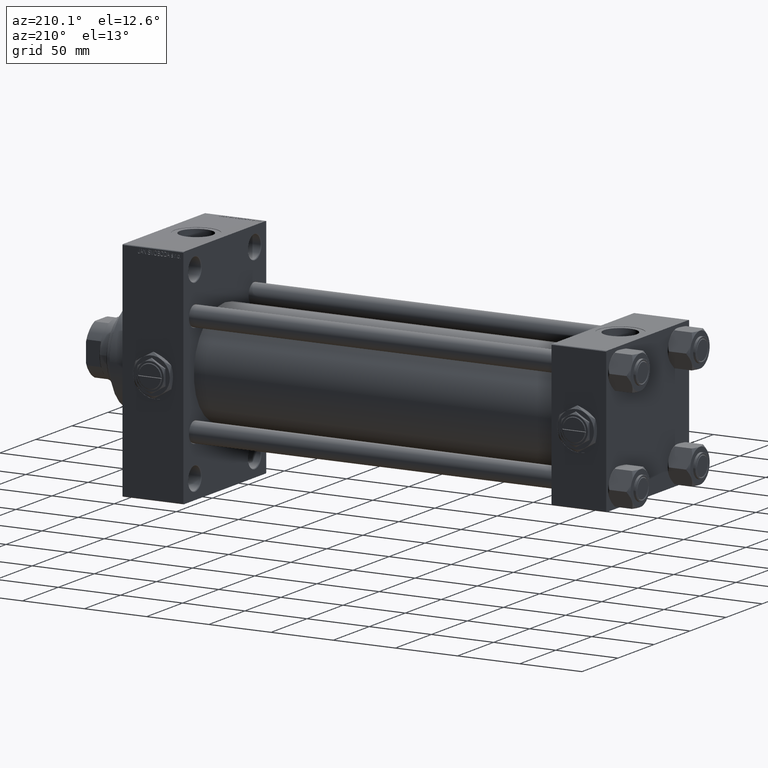
[diagram: clean part render]
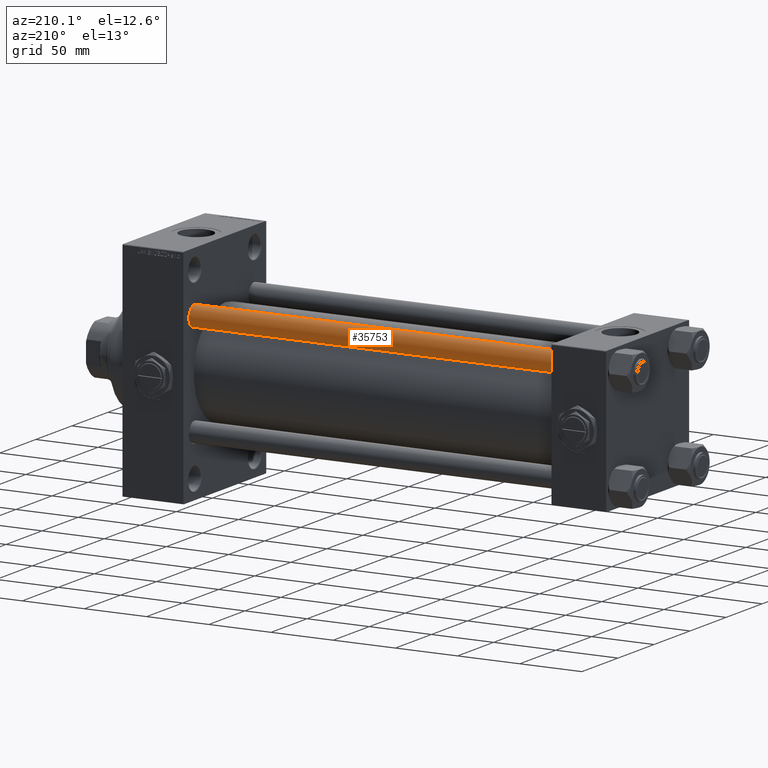
[diagram: same view with one face highlighted and labeled with its STEP entity id]
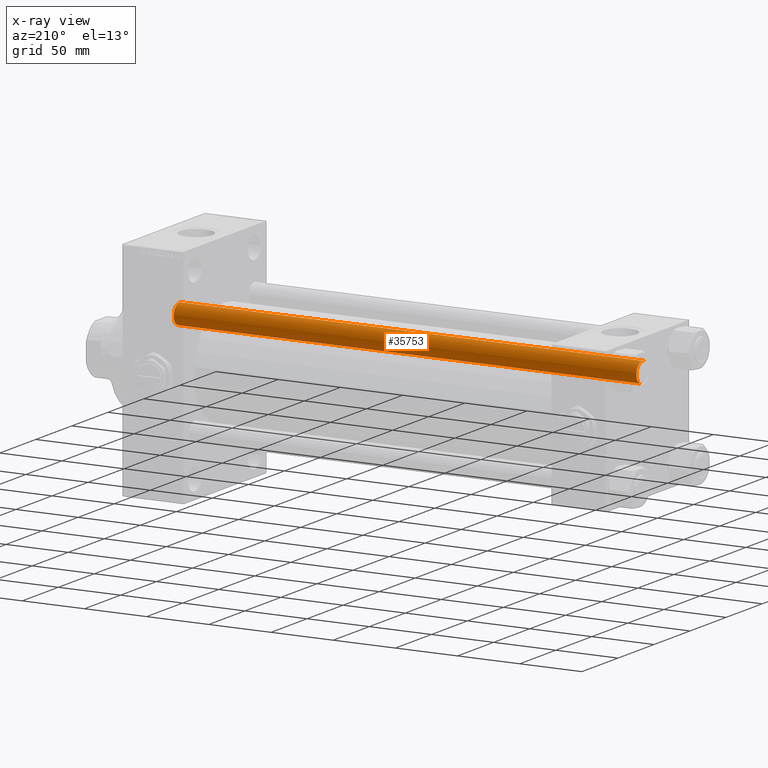
[diagram: x-ray of the same camera — body ghosted, the highlighted face saturated]
A machine part, auxiliary view. The second image highlights one B-rep face of the part: STEP entity #35753.
The next image is the same camera in x-ray: the body ghosted, the highlighted face saturated — about 0% of this face is hidden behind the body in this view.
In plain terms, the highlighted cylindrical surface (edge-blend (fillet) strip) has radius 8 mm, axis along (-1, -0, 0).
Its self-contained STEP definition (entity closure, byte-faithful):
#134 = VECTOR ( 'NONE', #5086, 1000.000000000000000 ) ;
#482 = FACE_OUTER_BOUND ( 'NONE', #16678, .T. ) ;
#490 = EDGE_CURVE ( 'NONE', #33931, #9074, #4456, .T. ) ;
#4436 = DIRECTION ( 'NONE',  ( -0.000000000000000000, -0.000000000000000000, 1.000000000000000000 ) ) ;
#4456 = CIRCLE ( 'NONE', #32603, 8.000000000000000000 ) ;
#4511 = CYLINDRICAL_SURFACE ( 'NONE', #8160, 8.000000000000000000 ) ;
#4721 = EDGE_CURVE ( 'NONE', #4979, #9074, #4849, .T. ) ;
#4849 = LINE ( 'NONE', #24503, #27114 ) ;
#4979 = VERTEX_POINT ( 'NONE', #6838 ) ;
#5086 = DIRECTION ( 'NONE',  ( -0.000000000000000000, -0.000000000000000000, -1.000000000000000000 ) ) ;
#6838 = CARTESIAN_POINT ( 'NONE',  ( -8.000000000000000000, 0.000000000000000000, 372.5000000000000000 ) ) ;
#8160 = AXIS2_PLACEMENT_3D ( 'NONE', #39261, #15631, #31949 ) ;
#9074 = VERTEX_POINT ( 'NONE', #34743 ) ;
#13022 = CIRCLE ( 'NONE', #32299, 8.000000000000000000 ) ;
#15601 = CARTESIAN_POINT ( 'NONE',  ( 8.000000000000000000, 9.797174393178825657E-16, 372.5000000000000000 ) ) ;
#15631 = DIRECTION ( 'NONE',  ( -0.000000000000000000, -0.000000000000000000, -1.000000000000000000 ) ) ;
#16443 = DIRECTION ( 'NONE',  ( -0.000000000000000000, -0.000000000000000000, -1.000000000000000000 ) ) ;
#16678 = EDGE_LOOP ( 'NONE', ( #48210, #18523, #42034, #39788 ) ) ;
#18523 = ORIENTED_EDGE ( 'NONE', *, *, #36557, .T. ) ;
#19002 = DIRECTION ( 'NONE',  ( 1.000000000000000000, 0.000000000000000000, 0.000000000000000000 ) ) ;
#21165 = CARTESIAN_POINT ( 'NONE',  ( 8.000000000000000000, 9.797174393178825657E-16, 0.5000000000000559552 ) ) ;
#24503 = CARTESIAN_POINT ( 'NONE',  ( -8.000000000000000000, 0.000000000000000000, 373.0000000000000000 ) ) ;
#24592 = DIRECTION ( 'NONE',  ( 1.000000000000000000, 0.000000000000000000, 0.000000000000000000 ) ) ;
#27114 = VECTOR ( 'NONE', #16443, 1000.000000000000000 ) ;
#28745 = LINE ( 'NONE', #39581, #134 ) ;
#29821 = DIRECTION ( 'NONE',  ( 0.000000000000000000, 0.000000000000000000, -1.000000000000000000 ) ) ;
#31949 = DIRECTION ( 'NONE',  ( -1.000000000000000000, 0.000000000000000000, 0.000000000000000000 ) ) ;
#32299 = AXIS2_PLACEMENT_3D ( 'NONE', #34087, #29821, #19002 ) ;
#32603 = AXIS2_PLACEMENT_3D ( 'NONE', #35659, #4436, #24592 ) ;
#33931 = VERTEX_POINT ( 'NONE', #21165 ) ;
#34087 = CARTESIAN_POINT ( 'NONE',  ( 0.000000000000000000, 0.000000000000000000, 372.5000000000000000 ) ) ;
#34743 = CARTESIAN_POINT ( 'NONE',  ( -8.000000000000000000, 0.000000000000000000, 0.5000000000000559552 ) ) ;
#35659 = CARTESIAN_POINT ( 'NONE',  ( 0.000000000000000000, 0.000000000000000000, 0.5000000000000559552 ) ) ;
#35753 = ADVANCED_FACE ( 'NONE', ( #482 ), #4511, .T. ) ;
#36557 = EDGE_CURVE ( 'NONE', #48396, #33931, #28745, .T. ) ;
#37118 = EDGE_CURVE ( 'NONE', #4979, #48396, #13022, .T. ) ;
#39261 = CARTESIAN_POINT ( 'NONE',  ( 0.000000000000000000, 0.000000000000000000, 373.0000000000000000 ) ) ;
#39581 = CARTESIAN_POINT ( 'NONE',  ( 8.000000000000000000, 9.797174393178825657E-16, 373.0000000000000000 ) ) ;
#39788 = ORIENTED_EDGE ( 'NONE', *, *, #4721, .F. ) ;
#42034 = ORIENTED_EDGE ( 'NONE', *, *, #490, .T. ) ;
#48210 = ORIENTED_EDGE ( 'NONE', *, *, #37118, .T. ) ;
#48396 = VERTEX_POINT ( 'NONE', #15601 ) ;